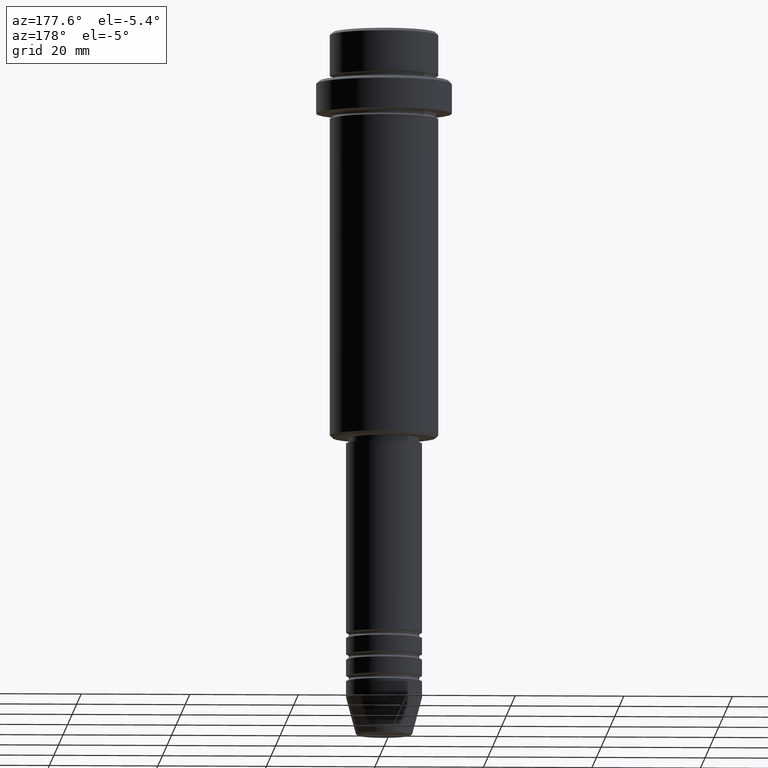
[diagram: clean part render]
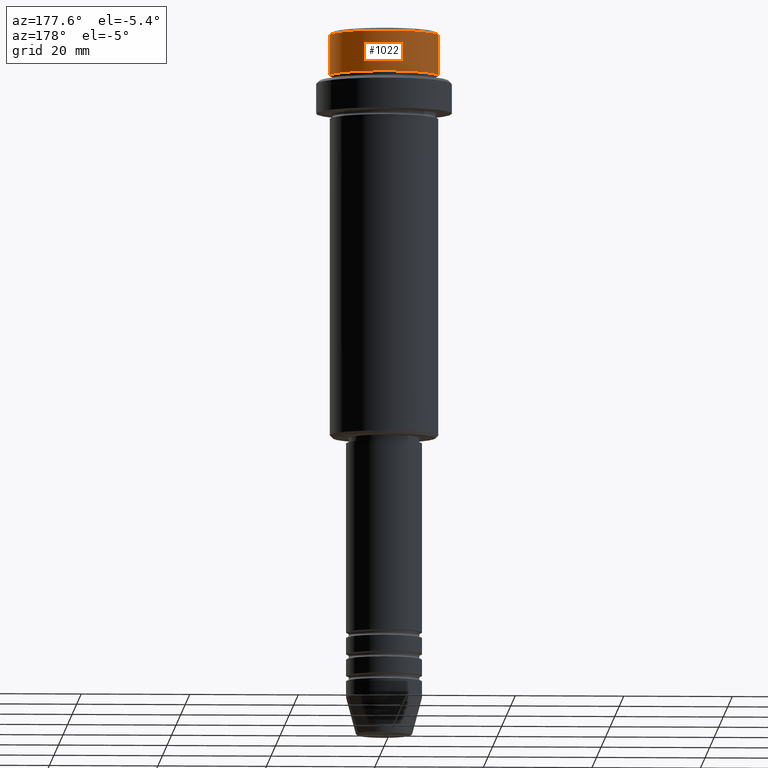
[diagram: same view with one face highlighted and labeled with its STEP entity id]
A machine part, auxiliary view. The second image highlights one B-rep face of the part: STEP entity #1022.
In plain terms, the highlighted cylindrical surface (partial cylindrical patch) has radius 10 mm, axis along (-0, -0, 1).
Its self-contained STEP definition (entity closure, byte-faithful):
#57 = DIRECTION ( 'NONE',  ( 1.000000000000000000, 0.000000000000000000, 0.000000000000000000 ) ) ;
#64 = DIRECTION ( 'NONE',  ( -0.000000000000000000, -0.000000000000000000, 1.000000000000000000 ) ) ;
#138 = DIRECTION ( 'NONE',  ( 1.000000000000000000, 0.000000000000000000, 0.000000000000000000 ) ) ;
#185 = AXIS2_PLACEMENT_3D ( 'NONE', #685, #1111, #138 ) ;
#219 = CARTESIAN_POINT ( 'NONE',  ( -9.999999999999998224, 1.224646799147353059E-15, -0.4999999999999831246 ) ) ;
#240 = ORIENTED_EDGE ( 'NONE', *, *, #1019, .T. ) ;
#295 = AXIS2_PLACEMENT_3D ( 'NONE', #800, #1232, #57 ) ;
#301 = EDGE_CURVE ( 'NONE', #370, #532, #950, .T. ) ;
#322 = LINE ( 'NONE', #763, #678 ) ;
#359 = CYLINDRICAL_SURFACE ( 'NONE', #295, 9.999999999999998224 ) ;
#370 = VERTEX_POINT ( 'NONE', #1184 ) ;
#472 = CARTESIAN_POINT ( 'NONE',  ( 0.000000000000000000, 0.000000000000000000, -7.999999999999998224 ) ) ;
#511 = CARTESIAN_POINT ( 'NONE',  ( -9.999999999999998224, 1.224646799147353059E-15, 0.000000000000000000 ) ) ;
#532 = VERTEX_POINT ( 'NONE', #219 ) ;
#575 = EDGE_CURVE ( 'NONE', #951, #370, #924, .T. ) ;
#631 = VERTEX_POINT ( 'NONE', #688 ) ;
#678 = VECTOR ( 'NONE', #875, 1000.000000000000000 ) ;
#685 = CARTESIAN_POINT ( 'NONE',  ( 0.000000000000000000, 0.000000000000000000, -0.4999999999999831246 ) ) ;
#688 = CARTESIAN_POINT ( 'NONE',  ( 9.999999999999998224, 0.000000000000000000, -0.4999999999999831246 ) ) ;
#729 = ORIENTED_EDGE ( 'NONE', *, *, #575, .T. ) ;
#763 = CARTESIAN_POINT ( 'NONE',  ( 9.999999999999998224, 0.000000000000000000, 0.000000000000000000 ) ) ;
#800 = CARTESIAN_POINT ( 'NONE',  ( 0.000000000000000000, 0.000000000000000000, 0.000000000000000000 ) ) ;
#835 = EDGE_CURVE ( 'NONE', #951, #631, #322, .T. ) ;
#870 = CIRCLE ( 'NONE', #185, 9.999999999999998224 ) ;
#875 = DIRECTION ( 'NONE',  ( -0.000000000000000000, -0.000000000000000000, 1.000000000000000000 ) ) ;
#904 = FACE_OUTER_BOUND ( 'NONE', #1407, .T. ) ;
#924 = CIRCLE ( 'NONE', #1266, 9.999999999999998224 ) ;
#950 = LINE ( 'NONE', #511, #1078 ) ;
#951 = VERTEX_POINT ( 'NONE', #1349 ) ;
#1019 = EDGE_CURVE ( 'NONE', #532, #631, #870, .T. ) ;
#1022 = ADVANCED_FACE ( 'NONE', ( #904 ), #359, .T. ) ;
#1052 = DIRECTION ( 'NONE',  ( -0.000000000000000000, -0.000000000000000000, 1.000000000000000000 ) ) ;
#1078 = VECTOR ( 'NONE', #1052, 1000.000000000000000 ) ;
#1110 = ORIENTED_EDGE ( 'NONE', *, *, #835, .F. ) ;
#1111 = DIRECTION ( 'NONE',  ( 0.000000000000000000, 0.000000000000000000, -1.000000000000000000 ) ) ;
#1184 = CARTESIAN_POINT ( 'NONE',  ( -9.999999999999998224, 1.224646799147353059E-15, -7.999999999999998224 ) ) ;
#1232 = DIRECTION ( 'NONE',  ( -0.000000000000000000, -0.000000000000000000, 1.000000000000000000 ) ) ;
#1266 = AXIS2_PLACEMENT_3D ( 'NONE', #472, #64, #1270 ) ;
#1270 = DIRECTION ( 'NONE',  ( 1.000000000000000000, 0.000000000000000000, 0.000000000000000000 ) ) ;
#1349 = CARTESIAN_POINT ( 'NONE',  ( 9.999999999999998224, 0.000000000000000000, -7.999999999999998224 ) ) ;
#1407 = EDGE_LOOP ( 'NONE', ( #729, #1414, #240, #1110 ) ) ;
#1414 = ORIENTED_EDGE ( 'NONE', *, *, #301, .T. ) ;